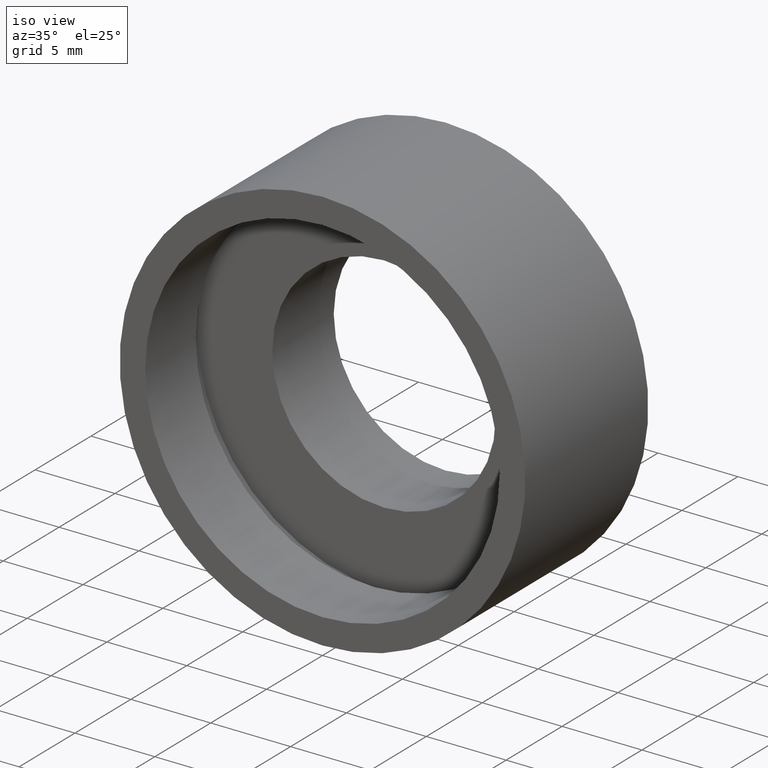
[diagram: clean part render]
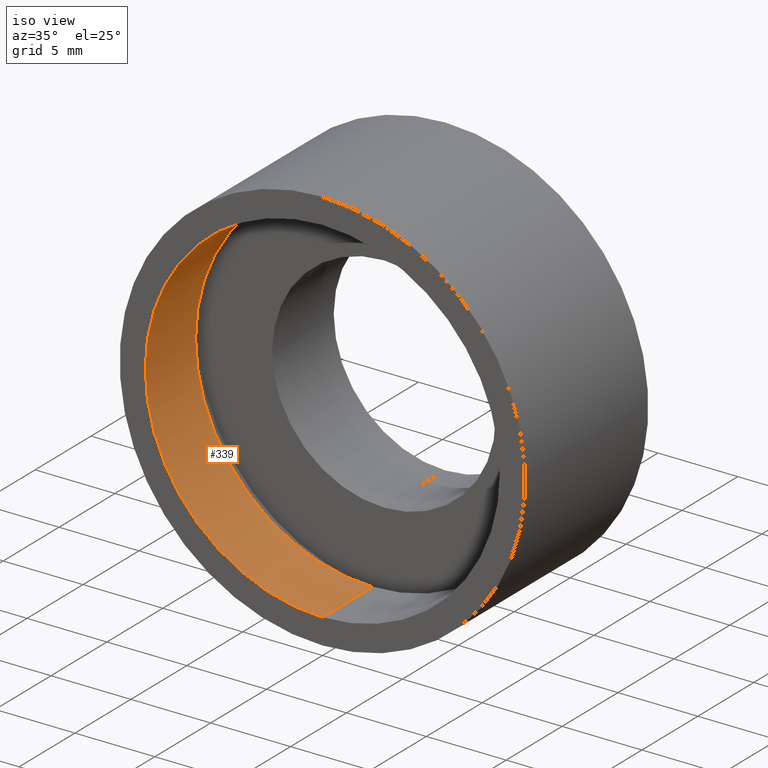
[diagram: same view with one face highlighted and labeled with its STEP entity id]
A machine part, iso view. The second image highlights one B-rep face of the part: STEP entity #339.
In plain terms, the highlighted cylindrical surface (partial cylindrical patch) has radius 11.1 mm, axis along (-0, 1, -0).
Its self-contained STEP definition (entity closure, byte-faithful):
#3 = LINE ( 'NONE', #346, #414 ) ;
#14 = EDGE_CURVE ( 'NONE', #360, #171, #400, .T. ) ;
#20 = CARTESIAN_POINT ( 'NONE',  ( 1.359357947053563100E-015, 4.499999999999997300, -11.10000000000000700 ) ) ;
#29 = CARTESIAN_POINT ( 'NONE',  ( 0.0000000000000000000, 60.02082041425541100, 11.10000000000000700 ) ) ;
#31 = AXIS2_PLACEMENT_3D ( 'NONE', #310, #313, #375 ) ;
#37 = AXIS2_PLACEMENT_3D ( 'NONE', #312, #187, #252 ) ;
#41 = CARTESIAN_POINT ( 'NONE',  ( 0.0000000000000000000, 4.499999999999997300, 0.0000000000000000000 ) ) ;
#43 = ORIENTED_EDGE ( 'NONE', *, *, #14, .F. ) ;
#50 = DIRECTION ( 'NONE',  ( -0.0000000000000000000, 1.000000000000000000, -0.0000000000000000000 ) ) ;
#51 = FACE_OUTER_BOUND ( 'NONE', #158, .T. ) ;
#67 = DIRECTION ( 'NONE',  ( -0.0000000000000000000, 1.000000000000000000, -0.0000000000000000000 ) ) ;
#77 = EDGE_CURVE ( 'NONE', #360, #279, #3, .T. ) ;
#78 = ORIENTED_EDGE ( 'NONE', *, *, #347, .T. ) ;
#79 = CARTESIAN_POINT ( 'NONE',  ( 0.0000000000000000000, 4.499999999999997300, 11.10000000000000700 ) ) ;
#95 = CARTESIAN_POINT ( 'NONE',  ( 0.0000000000000000000, 0.0000000000000000000, 11.10000000000000700 ) ) ;
#96 = VERTEX_POINT ( 'NONE', #79 ) ;
#158 = EDGE_LOOP ( 'NONE', ( #43, #192, #78, #287 ) ) ;
#171 = VERTEX_POINT ( 'NONE', #95 ) ;
#187 = DIRECTION ( 'NONE',  ( -0.0000000000000000000, 1.000000000000000000, -0.0000000000000000000 ) ) ;
#190 = DIRECTION ( 'NONE',  ( 0.0000000000000000000, 0.0000000000000000000, 1.000000000000000000 ) ) ;
#192 = ORIENTED_EDGE ( 'NONE', *, *, #77, .T. ) ;
#195 = CARTESIAN_POINT ( 'NONE',  ( 1.359357947053563100E-015, 0.0000000000000000000, -11.10000000000000700 ) ) ;
#232 = AXIS2_PLACEMENT_3D ( 'NONE', #41, #429, #190 ) ;
#252 = DIRECTION ( 'NONE',  ( 0.0000000000000000000, 0.0000000000000000000, 1.000000000000000000 ) ) ;
#279 = VERTEX_POINT ( 'NONE', #20 ) ;
#287 = ORIENTED_EDGE ( 'NONE', *, *, #377, .F. ) ;
#293 = CIRCLE ( 'NONE', #232, 11.10000000000000700 ) ;
#301 = CYLINDRICAL_SURFACE ( 'NONE', #31, 11.10000000000000700 ) ;
#309 = LINE ( 'NONE', #29, #318 ) ;
#310 = CARTESIAN_POINT ( 'NONE',  ( 0.0000000000000000000, 60.02082041425541100, 0.0000000000000000000 ) ) ;
#312 = CARTESIAN_POINT ( 'NONE',  ( 0.0000000000000000000, 0.0000000000000000000, 0.0000000000000000000 ) ) ;
#313 = DIRECTION ( 'NONE',  ( -0.0000000000000000000, 1.000000000000000000, -0.0000000000000000000 ) ) ;
#318 = VECTOR ( 'NONE', #50, 1000.000000000000000 ) ;
#339 = ADVANCED_FACE ( 'NONE', ( #51 ), #301, .F. ) ;
#346 = CARTESIAN_POINT ( 'NONE',  ( 1.359357947053563100E-015, 60.02082041425541100, -11.10000000000000700 ) ) ;
#347 = EDGE_CURVE ( 'NONE', #279, #96, #293, .T. ) ;
#360 = VERTEX_POINT ( 'NONE', #195 ) ;
#375 = DIRECTION ( 'NONE',  ( 0.0000000000000000000, 0.0000000000000000000, 1.000000000000000000 ) ) ;
#377 = EDGE_CURVE ( 'NONE', #171, #96, #309, .T. ) ;
#400 = CIRCLE ( 'NONE', #37, 11.10000000000000700 ) ;
#414 = VECTOR ( 'NONE', #67, 1000.000000000000000 ) ;
#429 = DIRECTION ( 'NONE',  ( -0.0000000000000000000, 1.000000000000000000, -0.0000000000000000000 ) ) ;